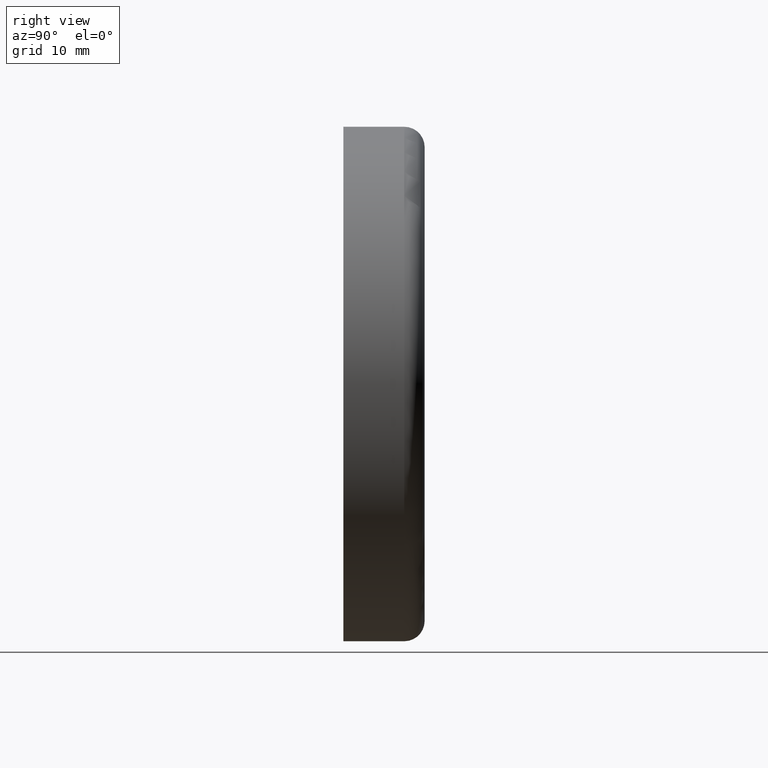
[diagram: clean part render]
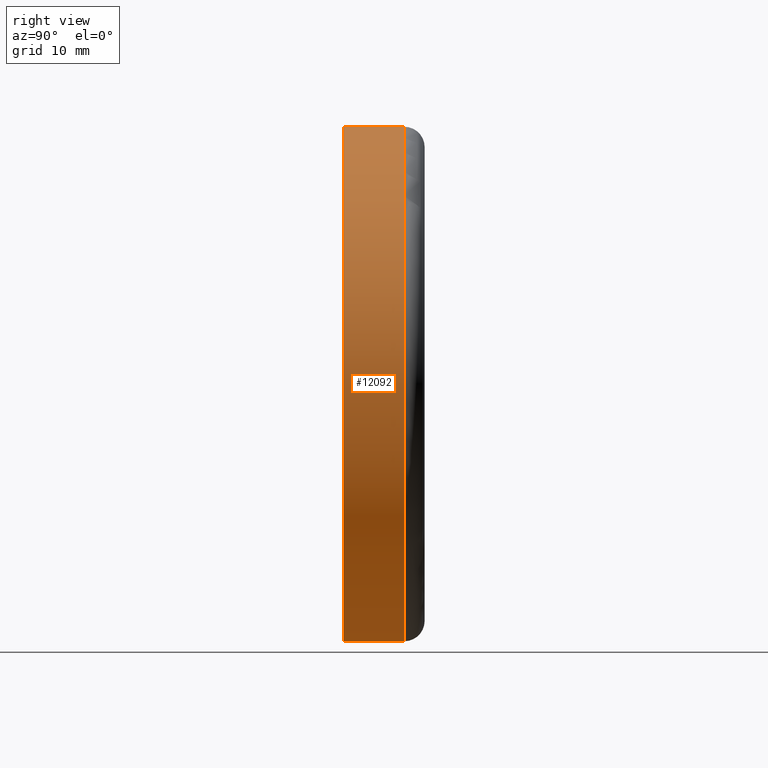
[diagram: same view with one face highlighted and labeled with its STEP entity id]
A machine part, right view. The second image highlights one B-rep face of the part: STEP entity #12092.
In plain terms, the highlighted cylindrical surface (partial cylindrical patch) has radius 38 mm, axis along (-0, -1, -0).
Its self-contained STEP definition (entity closure, byte-faithful):
#700 = LINE ( 'NONE', #10957, #3103 ) ;
#1030 = DIRECTION ( 'NONE',  ( 0.000000000000000000, 0.000000000000000000, -1.000000000000000000 ) ) ;
#1536 = AXIS2_PLACEMENT_3D ( 'NONE', #5582, #11555, #6724 ) ;
#1807 = VERTEX_POINT ( 'NONE', #3557 ) ;
#2019 = EDGE_LOOP ( 'NONE', ( #2657, #15076, #2604, #12107 ) ) ;
#2213 = DIRECTION ( 'NONE',  ( -0.000000000000000000, -1.000000000000000000, -0.000000000000000000 ) ) ;
#2270 = DIRECTION ( 'NONE',  ( -0.000000000000000000, -1.000000000000000000, -0.000000000000000000 ) ) ;
#2554 = CIRCLE ( 'NONE', #6639, 38.00000000000000711 ) ;
#2604 = ORIENTED_EDGE ( 'NONE', *, *, #7069, .F. ) ;
#2657 = ORIENTED_EDGE ( 'NONE', *, *, #15032, .T. ) ;
#3103 = VECTOR ( 'NONE', #8545, 1000.000000000000000 ) ;
#3504 = DIRECTION ( 'NONE',  ( -0.000000000000000000, -1.000000000000000000, -0.000000000000000000 ) ) ;
#3557 = CARTESIAN_POINT ( 'NONE',  ( 0.000000000000000000, 0.000000000000000000, -38.00000000000000711 ) ) ;
#3574 = VECTOR ( 'NONE', #2213, 1000.000000000000000 ) ;
#4604 = CARTESIAN_POINT ( 'NONE',  ( 4.653657836759942730E-15, 0.000000000000000000, 38.00000000000000711 ) ) ;
#4964 = CIRCLE ( 'NONE', #1536, 38.00000000000000711 ) ;
#5277 = CARTESIAN_POINT ( 'NONE',  ( 4.653657836759942730E-15, 0.000000000000000000, 38.00000000000000711 ) ) ;
#5303 = VERTEX_POINT ( 'NONE', #5277 ) ;
#5424 = LINE ( 'NONE', #4604, #3574 ) ;
#5582 = CARTESIAN_POINT ( 'NONE',  ( 0.000000000000000000, 9.000000000000001776, 0.000000000000000000 ) ) ;
#5653 = CARTESIAN_POINT ( 'NONE',  ( 0.000000000000000000, 9.000000000000001776, -38.00000000000000711 ) ) ;
#5947 = DIRECTION ( 'NONE',  ( 0.000000000000000000, 0.000000000000000000, -1.000000000000000000 ) ) ;
#6130 = AXIS2_PLACEMENT_3D ( 'NONE', #10539, #3504, #5947 ) ;
#6639 = AXIS2_PLACEMENT_3D ( 'NONE', #6945, #2270, #1030 ) ;
#6724 = DIRECTION ( 'NONE',  ( 0.000000000000000000, 0.000000000000000000, -1.000000000000000000 ) ) ;
#6729 = VERTEX_POINT ( 'NONE', #8495 ) ;
#6920 = VERTEX_POINT ( 'NONE', #5653 ) ;
#6945 = CARTESIAN_POINT ( 'NONE',  ( 0.000000000000000000, 0.000000000000000000, 0.000000000000000000 ) ) ;
#7069 = EDGE_CURVE ( 'NONE', #1807, #5303, #2554, .T. ) ;
#8129 = EDGE_CURVE ( 'NONE', #6920, #1807, #700, .T. ) ;
#8495 = CARTESIAN_POINT ( 'NONE',  ( 4.653657836759942730E-15, 9.000000000000001776, 38.00000000000000711 ) ) ;
#8545 = DIRECTION ( 'NONE',  ( -0.000000000000000000, -1.000000000000000000, -0.000000000000000000 ) ) ;
#10539 = CARTESIAN_POINT ( 'NONE',  ( 0.000000000000000000, 0.000000000000000000, 0.000000000000000000 ) ) ;
#10957 = CARTESIAN_POINT ( 'NONE',  ( 0.000000000000000000, 0.000000000000000000, -38.00000000000000711 ) ) ;
#11198 = EDGE_CURVE ( 'NONE', #6729, #5303, #5424, .T. ) ;
#11307 = CYLINDRICAL_SURFACE ( 'NONE', #6130, 38.00000000000000711 ) ;
#11555 = DIRECTION ( 'NONE',  ( -0.000000000000000000, -1.000000000000000000, -0.000000000000000000 ) ) ;
#12027 = FACE_OUTER_BOUND ( 'NONE', #2019, .T. ) ;
#12092 = ADVANCED_FACE ( 'NONE', ( #12027 ), #11307, .T. ) ;
#12107 = ORIENTED_EDGE ( 'NONE', *, *, #8129, .F. ) ;
#15032 = EDGE_CURVE ( 'NONE', #6920, #6729, #4964, .T. ) ;
#15076 = ORIENTED_EDGE ( 'NONE', *, *, #11198, .T. ) ;